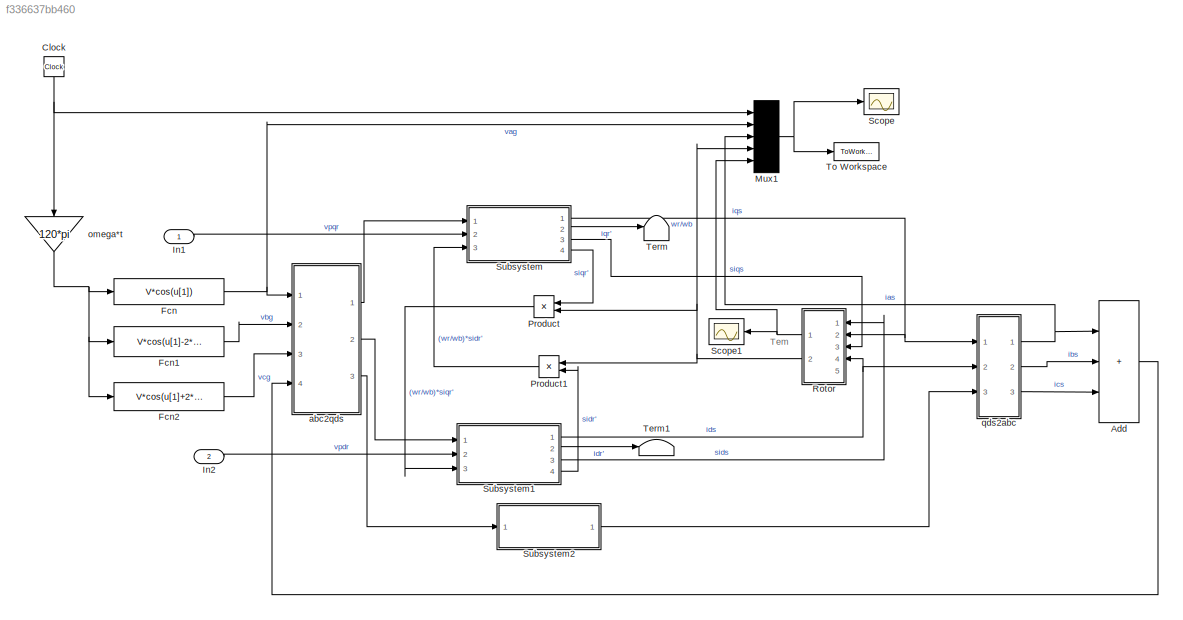
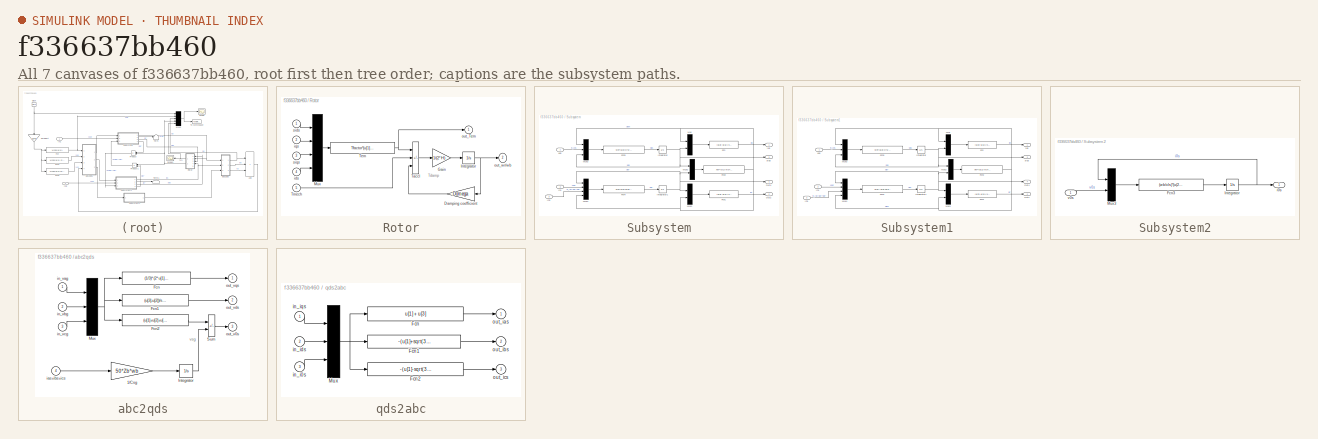
[diagram: thumbnail index - all 7 canvases of the model, root first then tree order]
MODEL slx_f336637bb460
KIND model
CONFIG AbsTol = auto
CONFIG EnableMultiTasking = off
CONFIG FixedStep = auto
CONFIG MaxStep = auto
CONFIG MinStep = auto
CONFIG RelTol = 1e-3
CONFIG SampleTimeConstraint = Unconstrained
CONFIG Solver = VariableStepAuto
CONFIG SolverName = VariableStepAuto
CONFIG StartTime = 0.0
CONFIG StopTime = 10.0
BLOCK [Sum] Add
  IconShape = rectangular
  Inputs = +++
  Ports = [3, 1]
BLOCK [Clock] Clock
BLOCK [Fcn] Fcn
  Expr = V*cos(u[1])
BLOCK [Fcn] Fcn1
  Expr = V*cos(u[1]-2*pi/3)
BLOCK [Fcn] Fcn2
  Expr = V*cos(u[1]+2*pi/3)
BLOCK [Inport] In1
BLOCK [Inport] In2
  Port = 2
BLOCK [Mux] Mux1
  Inputs = 5
  Ports = [5, 1]
BLOCK [Product] Product
  InputSameDT = on
  OutDataTypeStr = Inherit: Same as first input
  Ports = [2, 1]
  RndMeth = Zero
  SaturateOnIntegerOverflow = on
BLOCK [Product] Product1
  InputSameDT = on
  OutDataTypeStr = Inherit: Same as first input
  Ports = [2, 1]
  RndMeth = Zero
  SaturateOnIntegerOverflow = on
BLOCK [SubSystem] Rotor
  Ports = [5, 2]
  ShowPortLabels = none
BLOCK [Gain] Rotor/Damping coefficient
  Gain = Domega
  OutDataTypeStr = Inherit: Same as input
  ParamDataTypeStr = Inherit: Same as input
  SaturateOnIntegerOverflow = on
BLOCK [Gain] Rotor/Gain
  Gain = 1/(2*H)
BLOCK [Integrator] Rotor/Integrator
  Ports = [1, 1]
BLOCK [Mux] Rotor/Mux
  Ports = [4, 1]
BLOCK [Sum] Rotor/Taccl
  IconShape = rectangular
  InputSameDT = on
  Inputs = ++-
  OutDataTypeStr = Inherit: Same as first input
  Ports = [3, 1]
  SaturateOnIntegerOverflow = on
BLOCK [Fcn] Rotor/Tem
  Expr = Tfactor*(u[1]*u[2]-u[3]*u[4])
BLOCK [Inport] Rotor/Tmech
  Port = 5
BLOCK [Inport] Rotor/ids
  Port = 4
BLOCK [Inport] Rotor/iqs
  Port = 2
BLOCK [Outport] Rotor/out_Tem
  InitialOutput = 0
BLOCK [Outport] Rotor/out_wr//wb
  InitialOutput = 0
  Port = 2
BLOCK [Inport] Rotor/sids
BLOCK [Inport] Rotor/siqs
  Port = 3
BLOCK [Scope] Scope
  Floating = off
  NumInputPorts = 1
  Ports = [1]
  ScopeSpecificationString = Simulink.scopes.TimeScopeBlockCfg('CurrentConfiguration', extmgr.ConfigurationSet(extmgr.Configuration('Core','General UI',true),extmgr.Configuration('Core','Source UI',true),extmgr.Configuration('Sources','WiredSimulink',true,'DataLoggingDecimateData',true,'DataLoggingSaveFormat','Array'),extmgr.Configuration('Visuals','Time Domain',true,'TimeAxisLabels','All','SerializedDisplays',{struct('MinYLi...<+1776ch>
BLOCK [Scope] Scope1
  Floating = off
  NumInputPorts = 1
  Ports = [1]
  ScopeSpecificationString = Simulink.scopes.TimeScopeBlockCfg('CurrentConfiguration', extmgr.ConfigurationSet(extmgr.Configuration('Core','General UI',true),extmgr.Configuration('Core','Source UI',true),extmgr.Configuration('Sources','WiredSimulink',true,'DataLoggingDecimateData',true,'DataLoggingSaveFormat','Array','DataLoggingVariableName','ScopeData1'),extmgr.Configuration('Visuals','Time Domain',true,'TimeAxisLabels','Al...<+1643ch>
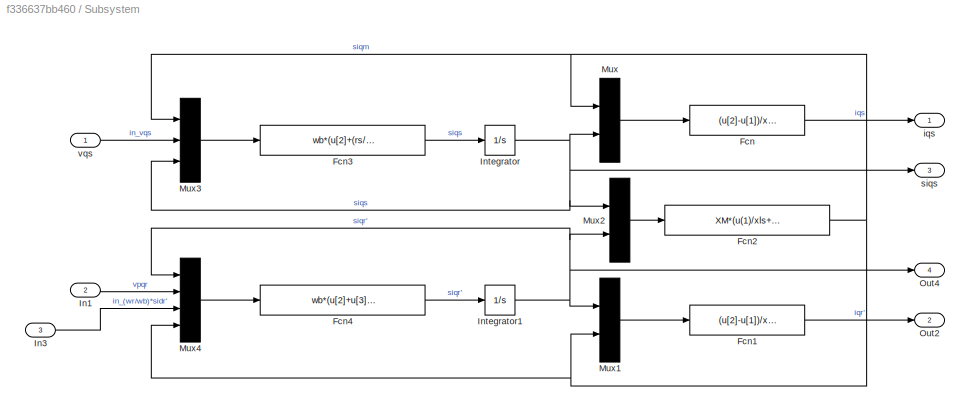
BLOCK [SubSystem] Subsystem
  Ports = [3, 4]
BLOCK [Fcn] Subsystem/Fcn
  Expr = (u[2]-u[1])/xls
BLOCK [Fcn] Subsystem/Fcn1
  Expr = (u[2]-u[1])/xls
BLOCK [Fcn] Subsystem/Fcn2
  Expr = XM*(u(1)/xls+u(2)/xplr)
BLOCK [Fcn] Subsystem/Fcn3
  Expr = wb*(u[2]+(rs/xls)*(u[1]-u[3]))
BLOCK [Fcn] Subsystem/Fcn4
  Expr = wb*(u[2]+u[3]+(rpr/xplr)*(u[4]-u[1]))
BLOCK [Inport] Subsystem/In1
  Port = 2
BLOCK [Inport] Subsystem/In3
  Port = 3
BLOCK [Integrator] Subsystem/Integrator
  Ports = [1, 1]
BLOCK [Integrator] Subsystem/Integrator1
  Ports = [1, 1]
BLOCK [Mux] Subsystem/Mux
  Inputs = 2
  Ports = [2, 1]
BLOCK [Mux] Subsystem/Mux1
  Inputs = 2
  Ports = [2, 1]
BLOCK [Mux] Subsystem/Mux2
  Inputs = 2
  Ports = [2, 1]
BLOCK [Mux] Subsystem/Mux3
  Inputs = 3
  Ports = [3, 1]
BLOCK [Mux] Subsystem/Mux4
  Ports = [4, 1]
BLOCK [Outport] Subsystem/Out2
  Port = 2
BLOCK [Outport] Subsystem/Out4
  Port = 4
BLOCK [Outport] Subsystem/iqs
BLOCK [Outport] Subsystem/siqs
  Port = 3
BLOCK [Inport] Subsystem/vqs
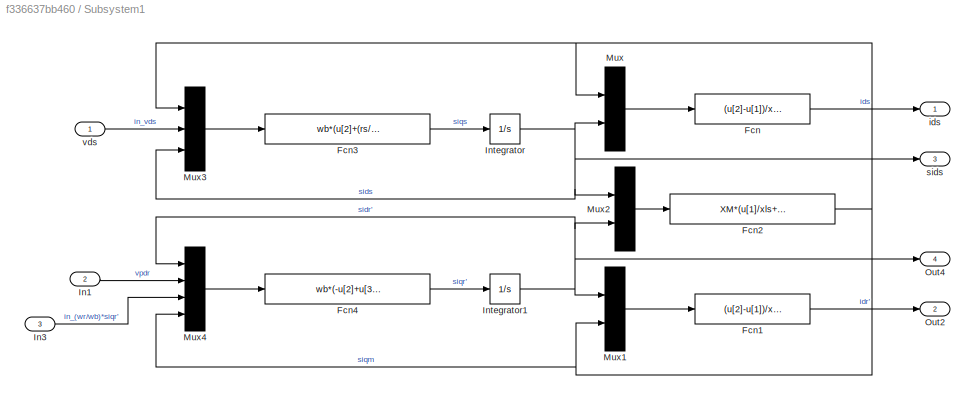
BLOCK [SubSystem] Subsystem1
  Ports = [3, 4]
BLOCK [Fcn] Subsystem1/Fcn
  Expr = (u[2]-u[1])/xls
BLOCK [Fcn] Subsystem1/Fcn1
  Expr = (u[2]-u[1])/xls
BLOCK [Fcn] Subsystem1/Fcn2
  Expr = XM*(u[1]/xls+u[2]/xplr)
BLOCK [Fcn] Subsystem1/Fcn3
  Expr = wb*(u[2]+(rs/xls)*(u[1]-u[3]))
BLOCK [Fcn] Subsystem1/Fcn4
  Expr = wb*(-u[2]+u[3]+(rpr/xplr)*(u[4]-u[1]))
BLOCK [Inport] Subsystem1/In1
  Port = 2
BLOCK [Inport] Subsystem1/In3
  Port = 3
BLOCK [Integrator] Subsystem1/Integrator
  Ports = [1, 1]
BLOCK [Integrator] Subsystem1/Integrator1
  Ports = [1, 1]
BLOCK [Mux] Subsystem1/Mux
  Inputs = 2
  Ports = [2, 1]
BLOCK [Mux] Subsystem1/Mux1
  Inputs = 2
  Ports = [2, 1]
BLOCK [Mux] Subsystem1/Mux2
  Inputs = 2
  Ports = [2, 1]
BLOCK [Mux] Subsystem1/Mux3
  Inputs = 3
  Ports = [3, 1]
BLOCK [Mux] Subsystem1/Mux4
  Ports = [4, 1]
BLOCK [Outport] Subsystem1/Out2
  Port = 2
BLOCK [Outport] Subsystem1/Out4
  Port = 4
BLOCK [Outport] Subsystem1/ids
BLOCK [Outport] Subsystem1/sids
  Port = 3
BLOCK [Inport] Subsystem1/vds
BLOCK [SubSystem] Subsystem2
  Ports = [1, 1]
BLOCK [Fcn] Subsystem2/Fcn3
  Expr = (wb/xls)*(u(2)-rs*u(1))
BLOCK [Integrator] Subsystem2/Integrator
  Ports = [1, 1]
BLOCK [Mux] Subsystem2/Mux3
  Inputs = 2
  Ports = [2, 1]
BLOCK [Outport] Subsystem2/i0s
BLOCK [Inport] Subsystem2/v0s
BLOCK [Terminator] Term
BLOCK [Terminator] Term1
BLOCK [ToWorkspace] To Workspace
  MaxDataPoints = 80000
  Ports = [1]
  VariableName = y
BLOCK [SubSystem] abc2qds
  Ports = [4, 3]
  ShowPortLabels = none
BLOCK [Gain] abc2qds/1//Csg
  Gain = 50*Zb*wb
  OutDataTypeStr = Inherit: Same as input
  ParamDataTypeStr = Inherit: Same as input
  SaturateOnIntegerOverflow = on
BLOCK [Fcn] abc2qds/Fcn
  Expr = (1/3)*(2*u[1]-u[2]-u[3])
BLOCK [Fcn] abc2qds/Fcn1
  Expr = (u[3]-u[2])/sqrt(3)
BLOCK [Fcn] abc2qds/Fcn2
  Expr = (u[1]+u[2]+u[3])/3
BLOCK [Integrator] abc2qds/Integrator
  Ports = [1, 1]
BLOCK [Mux] abc2qds/Mux
  Inputs = 3
  Ports = [3, 1]
BLOCK [Sum] abc2qds/Sum
  IconShape = rectangular
  InputSameDT = on
  Inputs = +-
  OutDataTypeStr = Inherit: Same as first input
  Ports = [2, 1]
  SaturateOnIntegerOverflow = on
BLOCK [Inport] abc2qds/ias+ibs+ics
  Port = 4
BLOCK [Inport] abc2qds/in_vag
BLOCK [Inport] abc2qds/in_vbg
  Port = 2
BLOCK [Inport] abc2qds/in_vcg
  Port = 3
BLOCK [Outport] abc2qds/out_v0s
  InitialOutput = 0
  Port = 3
BLOCK [Outport] abc2qds/out_vds
  InitialOutput = 0
  Port = 2
BLOCK [Outport] abc2qds/out_vqs
  InitialOutput = 0
BLOCK [Gain] omega*t
  Gain = 120*pi
  OutDataTypeStr = Inherit: Same as input
  ParamDataTypeStr = Inherit: Same as input
  SaturateOnIntegerOverflow = on
BLOCK [SubSystem] qds2abc
  Ports = [3, 3]
  ShowPortLabels = none
BLOCK [Fcn] qds2abc/Fcn
  Expr = u[1] + u[3]
BLOCK [Fcn] qds2abc/Fcn1
  Expr = -(u[1]+sqrt(3)*u[2])/2 +u[3]
BLOCK [Fcn] qds2abc/Fcn2
  Expr = -(u[1]-sqrt(3)*u[2])/2 + u[3]
BLOCK [Mux] qds2abc/Mux
  Inputs = 3
  Ports = [3, 1]
BLOCK [Inport] qds2abc/in_i0s
  Port = 3
BLOCK [Inport] qds2abc/in_ids
  Port = 2
BLOCK [Inport] qds2abc/in_iqs
BLOCK [Outport] qds2abc/out_ias
  InitialOutput = 0
BLOCK [Outport] qds2abc/out_ibs
  InitialOutput = 0
  Port = 2
BLOCK [Outport] qds2abc/out_ics
  InitialOutput = 0
  Port = 3
ANNOTATION (root): Tem
ANNOTATION Rotor: Tdamp
ANNOTATION abc2qds: vsg
LINE Add:1 -> abc2qds:4
NET Clock:1 -> Mux1:1, omega*t:1
LINE Fcn1:1 -> abc2qds:2
LINE Fcn2:1 -> abc2qds:3
NET Fcn:1 -> Mux1:2, abc2qds:1
LINE In1:1 -> Subsystem:2
LINE In2:1 -> Subsystem1:2
NET Mux1:1 -> Scope:1, To Workspace:1
LINE Product1:1 -> Subsystem:3
LINE Product:1 -> Subsystem1:3
LINE Rotor/Damping coefficient:1 -> Rotor/Taccl:3
LINE Rotor/Gain:1 -> Rotor/Integrator:1
NET Rotor/Integrator:1 -> Rotor/Damping coefficient:1, Rotor/out_wr//wb:1
LINE Rotor/Mux:1 -> Rotor/Tem:1
LINE Rotor/Taccl:1 -> Rotor/Gain:1
NET Rotor/Tem:1 -> Rotor/Taccl:1, Rotor/out_Tem:1
LINE Rotor/Tmech:1 -> Rotor/Taccl:2
LINE Rotor/ids:1 -> Rotor/Mux:4
LINE Rotor/iqs:1 -> Rotor/Mux:2
LINE Rotor/sids:1 -> Rotor/Mux:1
LINE Rotor/siqs:1 -> Rotor/Mux:3
NET Rotor:1 -> Mux1:5, Scope1:1
NET Rotor:2 -> Mux1:4, Product1:1, Product:2
LINE Subsystem/Fcn1:1 -> Subsystem/Out2:1
NET Subsystem/Fcn2:1 -> Subsystem/Mux1:2, Subsystem/Mux3:1, Subsystem/Mux4:4, Subsystem/Mux:1
LINE Subsystem/Fcn3:1 -> Subsystem/Integrator:1
LINE Subsystem/Fcn4:1 -> Subsystem/Integrator1:1
LINE Subsystem/Fcn:1 -> Subsystem/iqs:1
LINE Subsystem/In1:1 -> Subsystem/Mux4:2
LINE Subsystem/In3:1 -> Subsystem/Mux4:3
NET Subsystem/Integrator1:1 -> Subsystem/Mux1:1, Subsystem/Mux2:2, Subsystem/Mux4:1, Subsystem/Out4:1
NET Subsystem/Integrator:1 -> Subsystem/Mux2:1, Subsystem/Mux3:3, Subsystem/Mux:2, Subsystem/siqs:1
LINE Subsystem/Mux1:1 -> Subsystem/Fcn1:1
LINE Subsystem/Mux2:1 -> Subsystem/Fcn2:1
LINE Subsystem/Mux3:1 -> Subsystem/Fcn3:1
LINE Subsystem/Mux4:1 -> Subsystem/Fcn4:1
LINE Subsystem/Mux:1 -> Subsystem/Fcn:1
LINE Subsystem/vqs:1 -> Subsystem/Mux3:2
LINE Subsystem1/Fcn1:1 -> Subsystem1/Out2:1
NET Subsystem1/Fcn2:1 -> Subsystem1/Mux1:2, Subsystem1/Mux3:1, Subsystem1/Mux4:4, Subsystem1/Mux:1
LINE Subsystem1/Fcn3:1 -> Subsystem1/Integrator:1
LINE Subsystem1/Fcn4:1 -> Subsystem1/Integrator1:1
LINE Subsystem1/Fcn:1 -> Subsystem1/ids:1
LINE Subsystem1/In1:1 -> Subsystem1/Mux4:2
LINE Subsystem1/In3:1 -> Subsystem1/Mux4:3
NET Subsystem1/Integrator1:1 -> Subsystem1/Mux1:1, Subsystem1/Mux2:2, Subsystem1/Mux4:1, Subsystem1/Out4:1
NET Subsystem1/Integrator:1 -> Subsystem1/Mux2:1, Subsystem1/Mux3:3, Subsystem1/Mux:2, Subsystem1/sids:1
LINE Subsystem1/Mux1:1 -> Subsystem1/Fcn1:1
LINE Subsystem1/Mux2:1 -> Subsystem1/Fcn2:1
LINE Subsystem1/Mux3:1 -> Subsystem1/Fcn3:1
LINE Subsystem1/Mux4:1 -> Subsystem1/Fcn4:1
LINE Subsystem1/Mux:1 -> Subsystem1/Fcn:1
LINE Subsystem1/vds:1 -> Subsystem1/Mux3:2
NET Subsystem1:1 -> Rotor:4, qds2abc:2
LINE Subsystem1:2 -> Term1:1
LINE Subsystem1:3 -> Rotor:1
LINE Subsystem1:4 -> Product1:2
LINE Subsystem2/Fcn3:1 -> Subsystem2/Integrator:1
NET Subsystem2/Integrator:1 -> Subsystem2/Mux3:1, Subsystem2/i0s:1
LINE Subsystem2/Mux3:1 -> Subsystem2/Fcn3:1
LINE Subsystem2/v0s:1 -> Subsystem2/Mux3:2
LINE Subsystem2:1 -> qds2abc:3
NET Subsystem:1 -> Rotor:2, qds2abc:1
LINE Subsystem:2 -> Term:1
LINE Subsystem:3 -> Rotor:3
LINE Subsystem:4 -> Product:1
LINE abc2qds/1//Csg:1 -> abc2qds/Integrator:1
LINE abc2qds/Fcn1:1 -> abc2qds/out_vds:1
LINE abc2qds/Fcn2:1 -> abc2qds/Sum:1
LINE abc2qds/Fcn:1 -> abc2qds/out_vqs:1
LINE abc2qds/Integrator:1 -> abc2qds/Sum:2
NET abc2qds/Mux:1 -> abc2qds/Fcn1:1, abc2qds/Fcn2:1, abc2qds/Fcn:1
LINE abc2qds/Sum:1 -> abc2qds/out_v0s:1
LINE abc2qds/ias+ibs+ics:1 -> abc2qds/1//Csg:1
LINE abc2qds/in_vag:1 -> abc2qds/Mux:1
LINE abc2qds/in_vbg:1 -> abc2qds/Mux:2
LINE abc2qds/in_vcg:1 -> abc2qds/Mux:3
LINE abc2qds:1 -> Subsystem:1
LINE abc2qds:2 -> Subsystem1:1
LINE abc2qds:3 -> Subsystem2:1
NET omega*t:1 -> Fcn1:1, Fcn2:1, Fcn:1
LINE qds2abc/Fcn1:1 -> qds2abc/out_ibs:1
LINE qds2abc/Fcn2:1 -> qds2abc/out_ics:1
LINE qds2abc/Fcn:1 -> qds2abc/out_ias:1
NET qds2abc/Mux:1 -> qds2abc/Fcn1:1, qds2abc/Fcn2:1, qds2abc/Fcn:1
LINE qds2abc/in_i0s:1 -> qds2abc/Mux:3
LINE qds2abc/in_ids:1 -> qds2abc/Mux:2
LINE qds2abc/in_iqs:1 -> qds2abc/Mux:1
NET qds2abc:1 -> Add:1, Mux1:3
LINE qds2abc:2 -> Add:2
LINE qds2abc:3 -> Add:3
note: NET lines group one-source signal fan-out (src -> all destinations, sorted); 1:1 wires keep LINE
